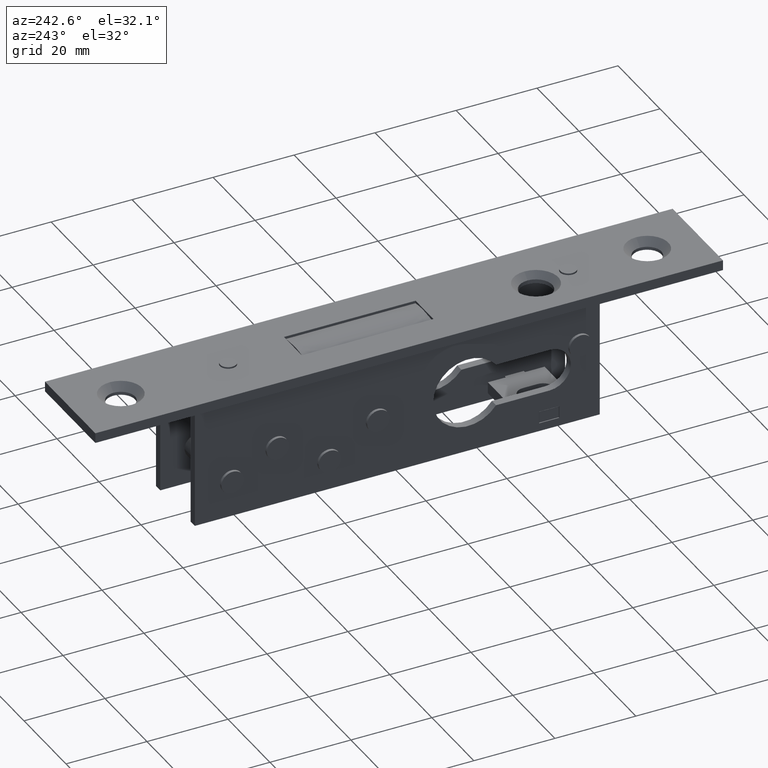
[diagram: clean part render]
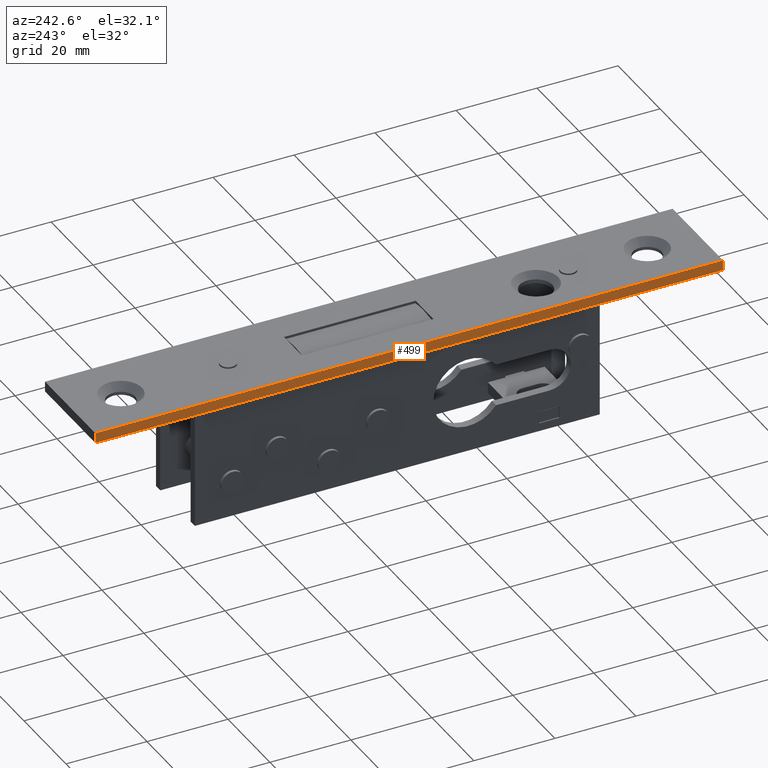
[diagram: same view with one face highlighted and labeled with its STEP entity id]
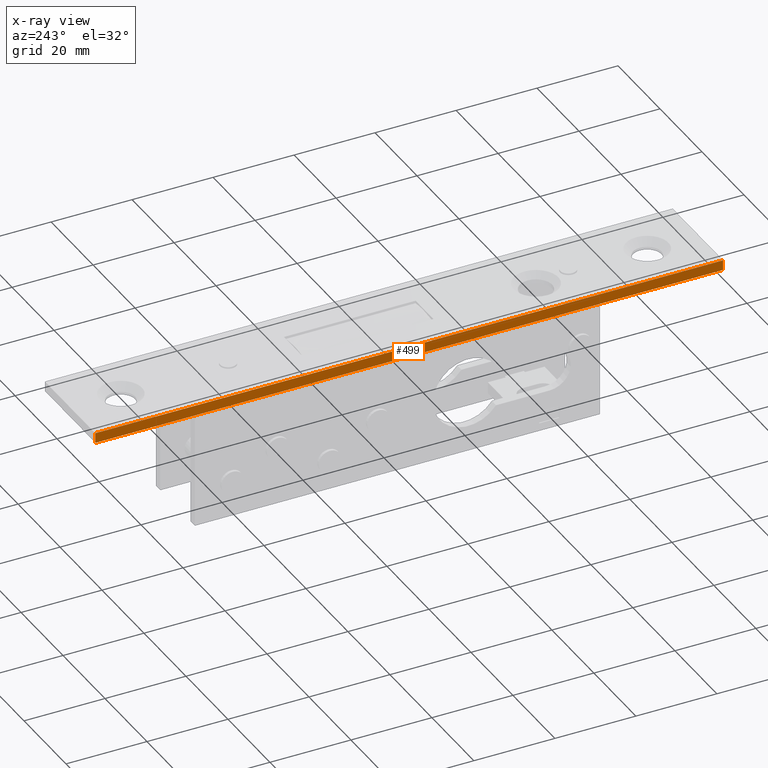
[diagram: x-ray of the same camera — body ghosted, the highlighted face saturated]
A machine part, auxiliary view. The second image highlights one B-rep face of the part: STEP entity #499.
The next image is the same camera in x-ray: the body ghosted, the highlighted face saturated — about 0% of this face is hidden behind the body in this view.
In plain terms, the highlighted planar face has unit normal (1, 0, -0).
Its self-contained STEP definition (entity closure, byte-faithful):
#52 = CARTESIAN_POINT ( 'NONE',  ( -12.00000000000000711, 77.50000000000000000, 2.500000000000000000 ) ) ;
#214 = ORIENTED_EDGE ( 'NONE', *, *, #6856, .F. ) ;
#499 = ADVANCED_FACE ( 'NONE', ( #9293 ), #1715, .F. ) ;
#533 = LINE ( 'NONE', #17991, #2262 ) ;
#767 = EDGE_LOOP ( 'NONE', ( #3020, #2016, #214, #5912 ) ) ;
#990 = DIRECTION ( 'NONE',  ( -0.000000000000000000, -0.000000000000000000, -1.000000000000000000 ) ) ;
#1531 = CARTESIAN_POINT ( 'NONE',  ( -12.00000000000000711, 77.50000000000000000, 0.000000000000000000 ) ) ;
#1715 = PLANE ( 'NONE',  #14504 ) ;
#2016 = ORIENTED_EDGE ( 'NONE', *, *, #4629, .F. ) ;
#2262 = VECTOR ( 'NONE', #13962, 1000.000000000000000 ) ;
#3020 = ORIENTED_EDGE ( 'NONE', *, *, #8560, .T. ) ;
#4024 = CARTESIAN_POINT ( 'NONE',  ( -12.00000000000000711, 77.50000000000000000, 2.500000000000000000 ) ) ;
#4629 = EDGE_CURVE ( 'NONE', #10560, #4729, #533, .T. ) ;
#4729 = VERTEX_POINT ( 'NONE', #12674 ) ;
#5604 = DIRECTION ( 'NONE',  ( 1.119176436114069085E-16, -1.000000000000000000, 0.000000000000000000 ) ) ;
#5912 = ORIENTED_EDGE ( 'NONE', *, *, #13775, .T. ) ;
#5979 = DIRECTION ( 'NONE',  ( 1.000000000000000000, 1.119176436114069085E-16, -0.000000000000000000 ) ) ;
#6692 = VERTEX_POINT ( 'NONE', #9642 ) ;
#6856 = EDGE_CURVE ( 'NONE', #6692, #10560, #10875, .T. ) ;
#7831 = VECTOR ( 'NONE', #9163, 1000.000000000000000 ) ;
#8560 = EDGE_CURVE ( 'NONE', #9048, #4729, #11928, .T. ) ;
#8671 = LINE ( 'NONE', #4024, #12135 ) ;
#8701 = DIRECTION ( 'NONE',  ( -1.119176436114069085E-16, 1.000000000000000000, 0.000000000000000000 ) ) ;
#9048 = VERTEX_POINT ( 'NONE', #14090 ) ;
#9163 = DIRECTION ( 'NONE',  ( 1.119176436114069085E-16, -1.000000000000000000, 0.000000000000000000 ) ) ;
#9293 = FACE_OUTER_BOUND ( 'NONE', #767, .T. ) ;
#9642 = CARTESIAN_POINT ( 'NONE',  ( -12.00000000000000711, 77.50000000000000000, 2.500000000000000000 ) ) ;
#10560 = VERTEX_POINT ( 'NONE', #15442 ) ;
#10875 = LINE ( 'NONE', #12002, #7831 ) ;
#11928 = LINE ( 'NONE', #1531, #12342 ) ;
#12002 = CARTESIAN_POINT ( 'NONE',  ( -12.00000000000000711, 77.50000000000000000, 2.500000000000000000 ) ) ;
#12135 = VECTOR ( 'NONE', #990, 1000.000000000000000 ) ;
#12342 = VECTOR ( 'NONE', #5604, 1000.000000000000000 ) ;
#12674 = CARTESIAN_POINT ( 'NONE',  ( -11.99999999999998934, -77.50000000000000000, 0.000000000000000000 ) ) ;
#13775 = EDGE_CURVE ( 'NONE', #6692, #9048, #8671, .T. ) ;
#13962 = DIRECTION ( 'NONE',  ( -0.000000000000000000, -0.000000000000000000, -1.000000000000000000 ) ) ;
#14090 = CARTESIAN_POINT ( 'NONE',  ( -12.00000000000000711, 77.50000000000000000, 0.000000000000000000 ) ) ;
#14504 = AXIS2_PLACEMENT_3D ( 'NONE', #52, #5979, #8701 ) ;
#15442 = CARTESIAN_POINT ( 'NONE',  ( -11.99999999999998934, -77.50000000000000000, 2.500000000000000000 ) ) ;
#17991 = CARTESIAN_POINT ( 'NONE',  ( -11.99999999999998934, -77.50000000000000000, 2.500000000000000000 ) ) ;